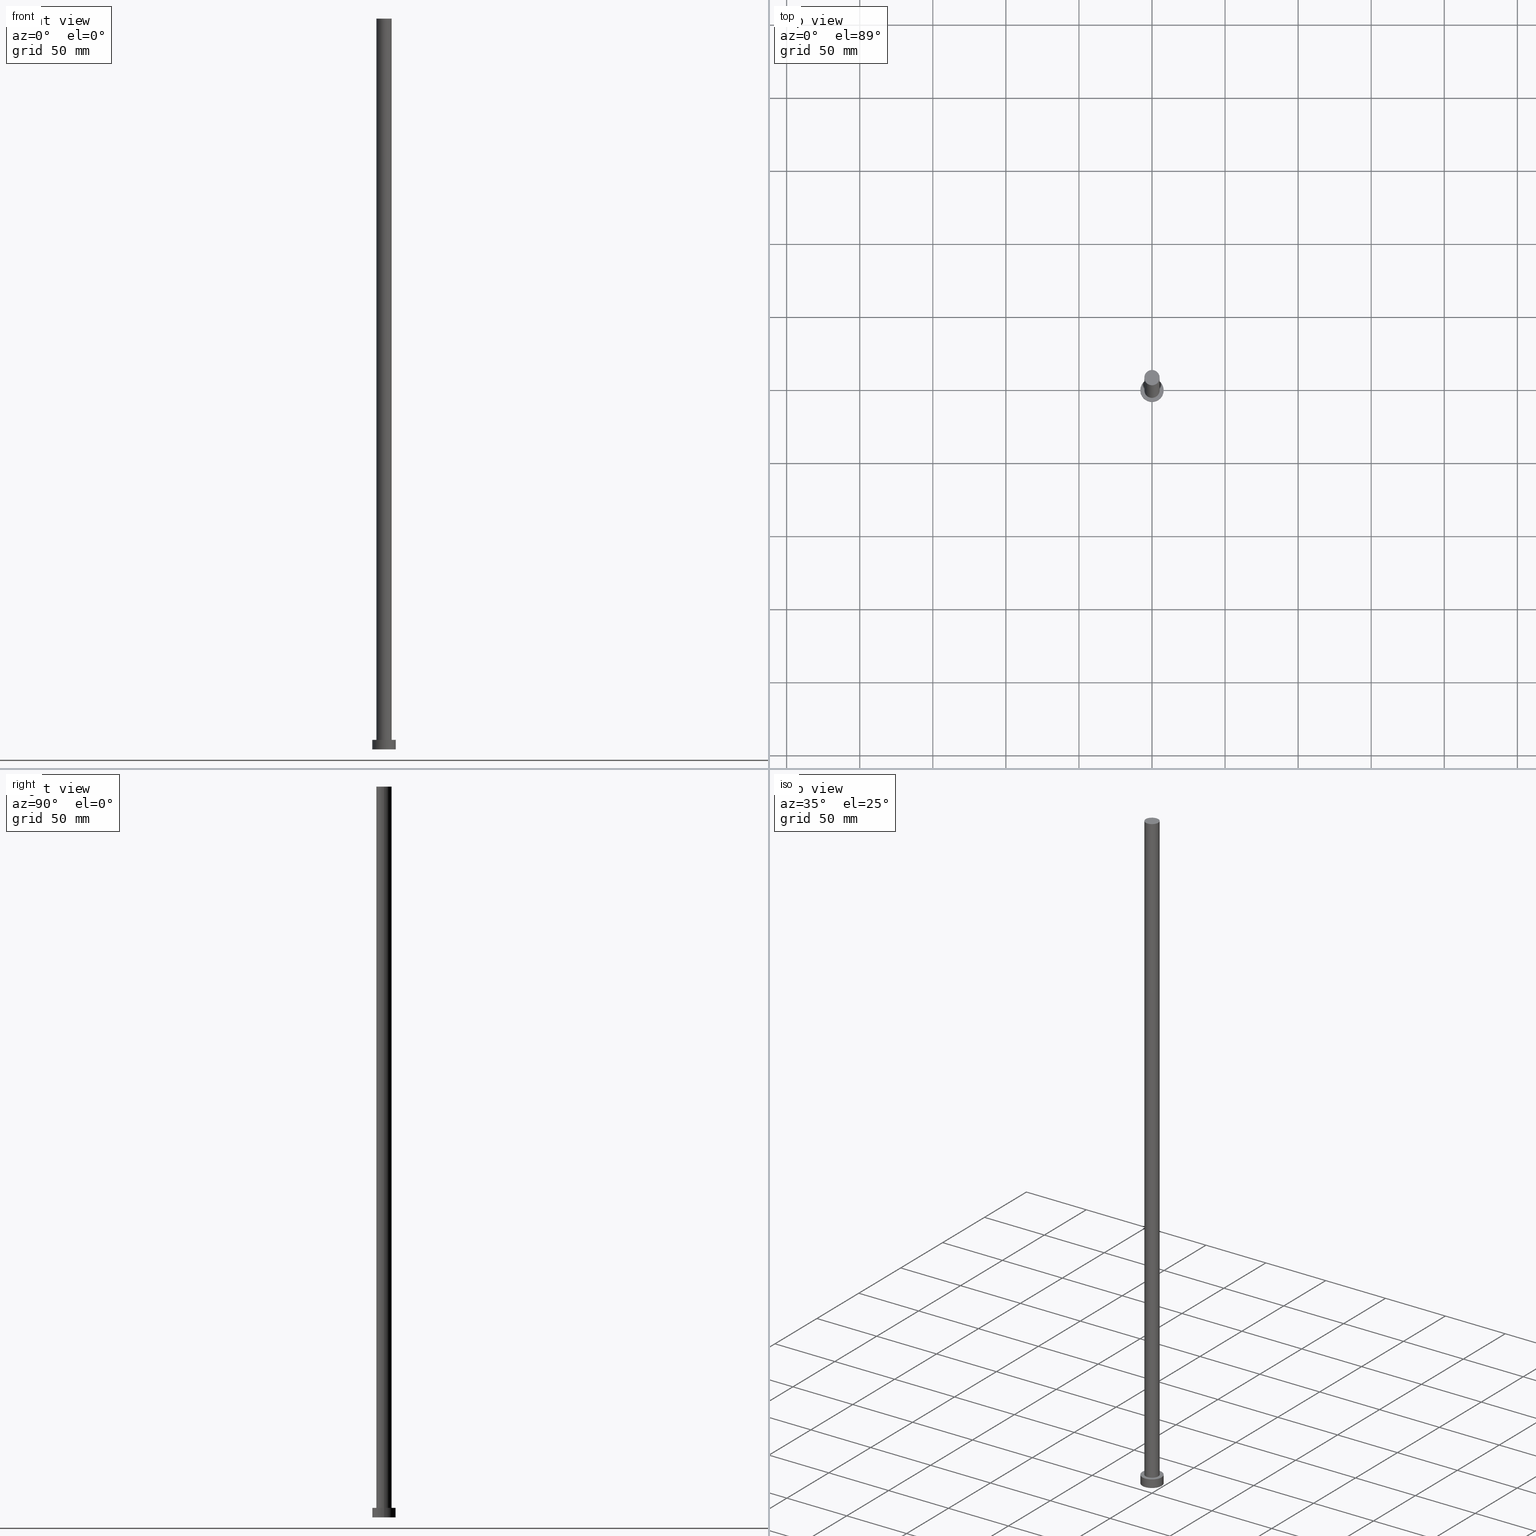
[diagram: canonical four-view strip — front | top / right | iso, engineering-drawing reading convention]
A machine part, canonical four-view strip (front | top / right | iso — engineering-drawing reading convention). The complete STEP part file that produces these views, byte-faithful:
ISO-10303-21;
HEADER;
FILE_DESCRIPTION (( 'STEP AP203' ),
    '1' );
FILE_NAME ('3daf.STEP',
    '2023-02-13T12:21:25',
    ( '' ),
    ( '' ),
    'SwSTEP 2.0',
    'SolidWorks 2019',
    '' );
FILE_SCHEMA (( 'CONFIG_CONTROL_DESIGN' ));
ENDSEC;

DATA;
#1 = APPROVAL ( #216, 'NEUR�EN�' ) ;
#2 = ORIENTED_EDGE ( 'NONE', *, *, #164, .T. ) ;
#3 = CIRCLE ( 'NONE', #77, 8.000000000000000000 ) ;
#4 = EDGE_LOOP ( 'NONE', ( #31, #2 ) ) ;
#5 =( NAMED_UNIT ( * ) SI_UNIT ( $, .STERADIAN. ) SOLID_ANGLE_UNIT ( ) );
#6 = CARTESIAN_POINT ( 'NONE',  ( -5.250000000000000888, 0.000000000000000000, 500.0000000000000000 ) ) ;
#7 = APPLICATION_PROTOCOL_DEFINITION ( 'international standard', 'config_control_design', 1994, #161 ) ;
#8 = PRODUCT_DEFINITION_SHAPE ( 'NONE', 'NONE',  #140 ) ;
#9 = APPROVAL_PERSON_ORGANIZATION ( #49, #1, #128 ) ;
#10 = VERTEX_POINT ( 'NONE', #83 ) ;
#11 = CARTESIAN_POINT ( 'NONE',  ( 8.000000000000000000, 9.797174393178823685E-16, 6.500000000000000000 ) ) ;
#12 = DATE_TIME_ROLE ( 'classification_date' ) ;
#13 = DIRECTION ( 'NONE',  ( -1.000000000000000000, 0.000000000000000000, 0.000000000000000000 ) ) ;
#14 = PERSON_AND_ORGANIZATION_ROLE ( 'classification_officer' ) ;
#15 = DIRECTION ( 'NONE',  ( -0.000000000000000000, -0.000000000000000000, -1.000000000000000000 ) ) ;
#16 = EDGE_CURVE ( 'NONE', #10, #95, #101, .T. ) ;
#17 = FACE_OUTER_BOUND ( 'NONE', #117, .T. ) ;
#18 = AXIS2_PLACEMENT_3D ( 'NONE', #132, #218, #158 ) ;
#19 = EDGE_LOOP ( 'NONE', ( #62, #80, #221, #103 ) ) ;
#20 = AXIS2_PLACEMENT_3D ( 'NONE', #111, #196, #201 ) ;
#21 = ORIENTED_EDGE ( 'NONE', *, *, #219, .F. ) ;
#22 = ORIENTED_EDGE ( 'NONE', *, *, #252, .T. ) ;
#23 = MECHANICAL_CONTEXT ( 'NONE', #208, 'mechanical' ) ;
#24 = AXIS2_PLACEMENT_3D ( 'NONE', #82, #220, #41 ) ;
#25 = APPROVAL_PERSON_ORGANIZATION ( #234, #42, #109 ) ;
#26 = CARTESIAN_POINT ( 'NONE',  ( 0.000000000000000000, 0.000000000000000000, 6.500000000000000000 ) ) ;
#27 = CALENDAR_DATE ( 2023, 13, 2 ) ;
#28 = PLANE ( 'NONE',  #123 ) ;
#29 = APPROVAL_DATE_TIME ( #212, #42 ) ;
#30 = CC_DESIGN_PERSON_AND_ORGANIZATION_ASSIGNMENT ( #249, #147, ( #140 ) ) ;
#31 = ORIENTED_EDGE ( 'NONE', *, *, #199, .T. ) ;
#32 = CARTESIAN_POINT ( 'NONE',  ( 8.000000000000000000, 9.797174393178823685E-16, 0.000000000000000000 ) ) ;
#33 = CARTESIAN_POINT ( 'NONE',  ( 5.250000000000000888, 6.429395695523605139E-16, 500.0000000000000000 ) ) ;
#34 = LOCAL_TIME ( 13, 21, 25.00000000000000000, #194 ) ;
#35 = CARTESIAN_POINT ( 'NONE',  ( 0.000000000000000000, 0.000000000000000000, 6.500000000000000000 ) ) ;
#36 = AXIS2_PLACEMENT_3D ( 'NONE', #51, #215, #197 ) ;
#37 = AXIS2_PLACEMENT_3D ( 'NONE', #26, #166, #145 ) ;
#38 = EDGE_LOOP ( 'NONE', ( #73, #224 ) ) ;
#39 = EDGE_LOOP ( 'NONE', ( #233, #214, #230, #148 ) ) ;
#40 = DIRECTION ( 'NONE',  ( 1.000000000000000000, 0.000000000000000000, 0.000000000000000000 ) ) ;
#41 = DIRECTION ( 'NONE',  ( -1.000000000000000000, 0.000000000000000000, 0.000000000000000000 ) ) ;
#42 = APPROVAL ( #232, 'NEUR�EN�' ) ;
#43 = CALENDAR_DATE ( 2023, 13, 2 ) ;
#44 = PERSON_AND_ORGANIZATION ( #76, #192 ) ;
#45 = AXIS2_PLACEMENT_3D ( 'NONE', #35, #74, #173 ) ;
#46 = DIRECTION ( 'NONE',  ( 0.000000000000000000, 0.000000000000000000, 1.000000000000000000 ) ) ;
#47 = COORDINATED_UNIVERSAL_TIME_OFFSET ( 1, 0, .AHEAD. ) ;
#48 = EDGE_CURVE ( 'NONE', #95, #99, #88, .T. ) ;
#49 = PERSON_AND_ORGANIZATION ( #76, #192 ) ;
#50 = DESIGN_CONTEXT ( 'detailed design', #161, 'design' ) ;
#51 = CARTESIAN_POINT ( 'NONE',  ( 0.000000000000000000, 0.000000000000000000, 500.0000000000000000 ) ) ;
#52 = CARTESIAN_POINT ( 'NONE',  ( 0.000000000000000000, 0.000000000000000000, 6.500000000000000000 ) ) ;
#53 = LINE ( 'NONE', #217, #184 ) ;
#54 = PERSON_AND_ORGANIZATION_ROLE ( 'design_supplier' ) ;
#55 = CC_DESIGN_PERSON_AND_ORGANIZATION_ASSIGNMENT ( #168, #71, ( #65 ) ) ;
#56 = AXIS2_PLACEMENT_3D ( 'NONE', #247, #112, #170 ) ;
#57 = VECTOR ( 'NONE', #202, 1000.000000000000000 ) ;
#58 = PRODUCT_RELATED_PRODUCT_CATEGORY ( 'detail', '', ( #228 ) ) ;
#59 = CARTESIAN_POINT ( 'NONE',  ( 5.250000000000000888, 6.429395695523605139E-16, 6.500000000000000000 ) ) ;
#60 = CC_DESIGN_SECURITY_CLASSIFICATION ( #222, ( #65 ) ) ;
#61 = ORIENTED_EDGE ( 'NONE', *, *, #241, .T. ) ;
#62 = ORIENTED_EDGE ( 'NONE', *, *, #105, .F. ) ;
#63 = UNCERTAINTY_MEASURE_WITH_UNIT (LENGTH_MEASURE( 1.000000000000000082E-05 ), #79, 'distance_accuracy_value', 'NONE');
#64 = AXIS2_PLACEMENT_3D ( 'NONE', #124, #211, #13 ) ;
#65 = PRODUCT_DEFINITION_FORMATION_WITH_SPECIFIED_SOURCE ( 'LIBOVOLN�', '', #228, .NOT_KNOWN. ) ;
#66 = PERSON_AND_ORGANIZATION ( #76, #192 ) ;
#67 = CARTESIAN_POINT ( 'NONE',  ( 0.000000000000000000, 0.000000000000000000, 6.500000000000000000 ) ) ;
#68 = CYLINDRICAL_SURFACE ( 'NONE', #64, 8.000000000000000000 ) ;
#69 = PERSON_AND_ORGANIZATION ( #76, #192 ) ;
#70 = DIRECTION ( 'NONE',  ( 1.000000000000000000, 0.000000000000000000, -0.000000000000000000 ) ) ;
#71 = PERSON_AND_ORGANIZATION_ROLE ( 'creator' ) ;
#72 = FACE_OUTER_BOUND ( 'NONE', #19, .T. ) ;
#73 = ORIENTED_EDGE ( 'NONE', *, *, #244, .F. ) ;
#74 = DIRECTION ( 'NONE',  ( 0.000000000000000000, 0.000000000000000000, 1.000000000000000000 ) ) ;
#75 = APPROVAL_PERSON_ORGANIZATION ( #66, #116, #207 ) ;
#76 = PERSON ( 'NEUR�EN�', 'NEUR�EN�', 'NEUR�EN�', ('NEUR�EN�'), ('NEUR�EN�'), ('NEUR�EN�') ) ;
#77 = AXIS2_PLACEMENT_3D ( 'NONE', #153, #255, #198 ) ;
#78 = ORIENTED_EDGE ( 'NONE', *, *, #164, .F. ) ;
#79 =( LENGTH_UNIT ( ) NAMED_UNIT ( * ) SI_UNIT ( .MILLI., .METRE. ) );
#80 = ORIENTED_EDGE ( 'NONE', *, *, #16, .T. ) ;
#81 = DIRECTION ( 'NONE',  ( 1.000000000000000000, 0.000000000000000000, 0.000000000000000000 ) ) ;
#82 = CARTESIAN_POINT ( 'NONE',  ( 0.000000000000000000, 0.000000000000000000, 500.0000000000000000 ) ) ;
#83 = CARTESIAN_POINT ( 'NONE',  ( 8.000000000000000000, 9.797174393178823685E-16, 6.500000000000000000 ) ) ;
#84 = CARTESIAN_POINT ( 'NONE',  ( 0.000000000000000000, 0.000000000000000000, 6.500000000000000000 ) ) ;
#85 = DIRECTION ( 'NONE',  ( -0.000000000000000000, -0.000000000000000000, -1.000000000000000000 ) ) ;
#86 = CALENDAR_DATE ( 2023, 13, 2 ) ;
#87 = APPROVAL_DATE_TIME ( #104, #1 ) ;
#88 = CIRCLE ( 'NONE', #113, 8.000000000000000000 ) ;
#89 = ADVANCED_FACE ( 'NONE', ( #72 ), #165, .T. ) ;
#90 = DIRECTION ( 'NONE',  ( -0.000000000000000000, -0.000000000000000000, -1.000000000000000000 ) ) ;
#91 = DIRECTION ( 'NONE',  ( 1.000000000000000000, 0.000000000000000000, 0.000000000000000000 ) ) ;
#92 = ADVANCED_FACE ( 'NONE', ( #130 ), #248, .T. ) ;
#93 = CIRCLE ( 'NONE', #142, 8.000000000000000000 ) ;
#94 = LINE ( 'NONE', #33, #167 ) ;
#95 = VERTEX_POINT ( 'NONE', #32 ) ;
#96 = CC_DESIGN_PERSON_AND_ORGANIZATION_ASSIGNMENT ( #189, #100, ( #228 ) ) ;
#97 = ORIENTED_EDGE ( 'NONE', *, *, #199, .F. ) ;
#98 = ORIENTED_EDGE ( 'NONE', *, *, #219, .T. ) ;
#99 = VERTEX_POINT ( 'NONE', #154 ) ;
#100 = PERSON_AND_ORGANIZATION_ROLE ( 'design_owner' ) ;
#101 = LINE ( 'NONE', #11, #157 ) ;
#102 = APPROVAL_DATE_TIME ( #118, #116 ) ;
#103 = ORIENTED_EDGE ( 'NONE', *, *, #186, .F. ) ;
#104 = DATE_AND_TIME ( #86, #34 ) ;
#105 = EDGE_CURVE ( 'NONE', #10, #177, #235, .T. ) ;
#106 = DIRECTION ( 'NONE',  ( -1.000000000000000000, 0.000000000000000000, 0.000000000000000000 ) ) ;
#107 = SECURITY_CLASSIFICATION_LEVEL ( 'unclassified' ) ;
#108 = CARTESIAN_POINT ( 'NONE',  ( 0.000000000000000000, 0.000000000000000000, 0.000000000000000000 ) ) ;
#109 = APPROVAL_ROLE ( '' ) ;
#110 = CC_DESIGN_APPROVAL ( #116, ( #140 ) ) ;
#111 = CARTESIAN_POINT ( 'NONE',  ( 0.000000000000000000, 0.000000000000000000, 500.0000000000000000 ) ) ;
#112 = DIRECTION ( 'NONE',  ( 0.000000000000000000, 0.000000000000000000, 1.000000000000000000 ) ) ;
#113 = AXIS2_PLACEMENT_3D ( 'NONE', #108, #193, #209 ) ;
#114 = AXIS2_PLACEMENT_3D ( 'NONE', #52, #129, #91 ) ;
#115 = VERTEX_POINT ( 'NONE', #146 ) ;
#116 = APPROVAL ( #143, 'NEUR�EN�' ) ;
#117 = EDGE_LOOP ( 'NONE', ( #183, #97, #22, #98 ) ) ;
#118 = DATE_AND_TIME ( #43, #226 ) ;
#119 = CC_DESIGN_APPROVAL ( #1, ( #222 ) ) ;
#120 = ORIENTED_EDGE ( 'NONE', *, *, #126, .T. ) ;
#121 = DATE_AND_TIME ( #191, #225 ) ;
#122 = CARTESIAN_POINT ( 'NONE',  ( -5.250000000000000888, 0.000000000000000000, 6.500000000000000000 ) ) ;
#123 = AXIS2_PLACEMENT_3D ( 'NONE', #169, #251, #70 ) ;
#124 = CARTESIAN_POINT ( 'NONE',  ( 0.000000000000000000, 0.000000000000000000, 6.500000000000000000 ) ) ;
#125 = SHAPE_DEFINITION_REPRESENTATION ( #8, #138 ) ;
#126 = EDGE_CURVE ( 'NONE', #204, #135, #223, .T. ) ;
#127 = DIRECTION ( 'NONE',  ( 1.000000000000000000, 0.000000000000000000, 0.000000000000000000 ) ) ;
#128 = APPROVAL_ROLE ( '' ) ;
#129 = DIRECTION ( 'NONE',  ( 0.000000000000000000, 0.000000000000000000, 1.000000000000000000 ) ) ;
#130 = FACE_OUTER_BOUND ( 'NONE', #4, .T. ) ;
#131 = COORDINATED_UNIVERSAL_TIME_OFFSET ( 1, 0, .AHEAD. ) ;
#132 = CARTESIAN_POINT ( 'NONE',  ( 0.000000000000000000, 0.000000000000000000, 500.0000000000000000 ) ) ;
#133 = ORIENTED_EDGE ( 'NONE', *, *, #213, .T. ) ;
#134 = CC_DESIGN_PERSON_AND_ORGANIZATION_ASSIGNMENT ( #69, #14, ( #222 ) ) ;
#135 = VERTEX_POINT ( 'NONE', #122 ) ;
#136 = EDGE_LOOP ( 'NONE', ( #133, #245 ) ) ;
#137 = CIRCLE ( 'NONE', #20, 5.250000000000000888 ) ;
#138 = ADVANCED_BREP_SHAPE_REPRESENTATION ( '3daf', ( #155, #187 ), #174 ) ;
#139 = ADVANCED_FACE ( 'NONE', ( #250 ), #68, .T. ) ;
#140 = PRODUCT_DEFINITION ( 'NEZN�M�', '', #65, #50 ) ;
#141 = DIRECTION ( 'NONE',  ( 0.000000000000000000, 0.000000000000000000, 1.000000000000000000 ) ) ;
#142 = AXIS2_PLACEMENT_3D ( 'NONE', #163, #182, #81 ) ;
#143 = APPROVAL_STATUS ( 'not_yet_approved' ) ;
#144 = ADVANCED_FACE ( 'NONE', ( #236 ), #28, .F. ) ;
#145 = DIRECTION ( 'NONE',  ( 1.000000000000000000, 0.000000000000000000, 0.000000000000000000 ) ) ;
#146 = CARTESIAN_POINT ( 'NONE',  ( -5.250000000000000888, 0.000000000000000000, 500.0000000000000000 ) ) ;
#147 = PERSON_AND_ORGANIZATION_ROLE ( 'creator' ) ;
#148 = ORIENTED_EDGE ( 'NONE', *, *, #244, .T. ) ;
#149 = DATE_TIME_ROLE ( 'creation_date' ) ;
#150 = CC_DESIGN_DATE_AND_TIME_ASSIGNMENT ( #231, #12, ( #222 ) ) ;
#151 = CIRCLE ( 'NONE', #36, 5.250000000000000888 ) ;
#152 = CARTESIAN_POINT ( 'NONE',  ( 5.250000000000000888, 6.429395695523605139E-16, 500.0000000000000000 ) ) ;
#153 = CARTESIAN_POINT ( 'NONE',  ( 0.000000000000000000, 0.000000000000000000, 6.500000000000000000 ) ) ;
#154 = CARTESIAN_POINT ( 'NONE',  ( -8.000000000000000000, 0.000000000000000000, 0.000000000000000000 ) ) ;
#155 = MANIFOLD_SOLID_BREP ( 'P�idat vysunut�m3', #200 ) ;
#156 = ORIENTED_EDGE ( 'NONE', *, *, #252, .F. ) ;
#157 = VECTOR ( 'NONE', #85, 1000.000000000000000 ) ;
#158 = DIRECTION ( 'NONE',  ( -1.000000000000000000, 0.000000000000000000, 0.000000000000000000 ) ) ;
#159 = CIRCLE ( 'NONE', #114, 5.250000000000000888 ) ;
#160 = EDGE_LOOP ( 'NONE', ( #21, #185 ) ) ;
#161 = APPLICATION_CONTEXT ( 'configuration controlled 3d designs of mechanical parts and assemblies' ) ;
#162 = VERTEX_POINT ( 'NONE', #152 ) ;
#163 = CARTESIAN_POINT ( 'NONE',  ( 0.000000000000000000, 0.000000000000000000, 0.000000000000000000 ) ) ;
#164 = EDGE_CURVE ( 'NONE', #162, #115, #151, .T. ) ;
#165 = CYLINDRICAL_SURFACE ( 'NONE', #178, 8.000000000000000000 ) ;
#166 = DIRECTION ( 'NONE',  ( 0.000000000000000000, 0.000000000000000000, 1.000000000000000000 ) ) ;
#167 = VECTOR ( 'NONE', #195, 1000.000000000000000 ) ;
#168 = PERSON_AND_ORGANIZATION ( #76, #192 ) ;
#169 = CARTESIAN_POINT ( 'NONE',  ( 0.000000000000000000, 0.000000000000000000, 0.000000000000000000 ) ) ;
#170 = DIRECTION ( 'NONE',  ( 1.000000000000000000, 0.000000000000000000, -0.000000000000000000 ) ) ;
#171 = CC_DESIGN_APPROVAL ( #42, ( #65 ) ) ;
#172 = FACE_OUTER_BOUND ( 'NONE', #206, .T. ) ;
#173 = DIRECTION ( 'NONE',  ( 1.000000000000000000, 0.000000000000000000, -0.000000000000000000 ) ) ;
#174 =( GEOMETRIC_REPRESENTATION_CONTEXT ( 3 ) GLOBAL_UNCERTAINTY_ASSIGNED_CONTEXT ( ( #63 ) ) GLOBAL_UNIT_ASSIGNED_CONTEXT ( ( #79, #246, #5 ) ) REPRESENTATION_CONTEXT ( 'NONE', 'WORKASPACE' ) );
#175 = CC_DESIGN_PERSON_AND_ORGANIZATION_ASSIGNMENT ( #44, #54, ( #65 ) ) ;
#176 = FACE_BOUND ( 'NONE', #160, .T. ) ;
#177 = VERTEX_POINT ( 'NONE', #238 ) ;
#178 = AXIS2_PLACEMENT_3D ( 'NONE', #84, #15, #106 ) ;
#179 = CARTESIAN_POINT ( 'NONE',  ( 0.000000000000000000, 0.000000000000000000, 0.000000000000000000 ) ) ;
#180 = LOCAL_TIME ( 13, 21, 25.00000000000000000, #131 ) ;
#181 = CC_DESIGN_DATE_AND_TIME_ASSIGNMENT ( #121, #149, ( #140 ) ) ;
#182 = DIRECTION ( 'NONE',  ( 0.000000000000000000, 0.000000000000000000, 1.000000000000000000 ) ) ;
#183 = ORIENTED_EDGE ( 'NONE', *, *, #241, .F. ) ;
#184 = VECTOR ( 'NONE', #90, 1000.000000000000000 ) ;
#185 = ORIENTED_EDGE ( 'NONE', *, *, #126, .F. ) ;
#186 = EDGE_CURVE ( 'NONE', #177, #99, #53, .T. ) ;
#187 = AXIS2_PLACEMENT_3D ( 'NONE', #179, #141, #40 ) ;
#188 = LOCAL_TIME ( 13, 21, 25.00000000000000000, #47 ) ;
#189 = PERSON_AND_ORGANIZATION ( #76, #192 ) ;
#190 = ADVANCED_FACE ( 'NONE', ( #172 ), #240, .T. ) ;
#191 = CALENDAR_DATE ( 2023, 13, 2 ) ;
#192 = ORGANIZATION ( 'NEUR�EN�', 'NEUR�EN�', '' ) ;
#193 = DIRECTION ( 'NONE',  ( 0.000000000000000000, 0.000000000000000000, 1.000000000000000000 ) ) ;
#194 = COORDINATED_UNIVERSAL_TIME_OFFSET ( 1, 0, .AHEAD. ) ;
#195 = DIRECTION ( 'NONE',  ( -0.000000000000000000, -0.000000000000000000, -1.000000000000000000 ) ) ;
#196 = DIRECTION ( 'NONE',  ( 0.000000000000000000, 0.000000000000000000, 1.000000000000000000 ) ) ;
#197 = DIRECTION ( 'NONE',  ( 1.000000000000000000, 0.000000000000000000, 0.000000000000000000 ) ) ;
#198 = DIRECTION ( 'NONE',  ( 1.000000000000000000, 0.000000000000000000, 0.000000000000000000 ) ) ;
#199 = EDGE_CURVE ( 'NONE', #115, #162, #137, .T. ) ;
#200 = CLOSED_SHELL ( 'NONE', ( #190, #89, #139, #203, #144, #227, #92 ) ) ;
#201 = DIRECTION ( 'NONE',  ( 1.000000000000000000, 0.000000000000000000, 0.000000000000000000 ) ) ;
#202 = DIRECTION ( 'NONE',  ( -0.000000000000000000, -0.000000000000000000, -1.000000000000000000 ) ) ;
#203 = ADVANCED_FACE ( 'NONE', ( #176, #237 ), #242, .T. ) ;
#204 = VERTEX_POINT ( 'NONE', #59 ) ;
#205 = LINE ( 'NONE', #6, #57 ) ;
#206 = EDGE_LOOP ( 'NONE', ( #78, #61, #120, #156 ) ) ;
#207 = APPROVAL_ROLE ( '' ) ;
#208 = APPLICATION_CONTEXT ( 'configuration controlled 3d designs of mechanical parts and assemblies' ) ;
#209 = DIRECTION ( 'NONE',  ( 1.000000000000000000, 0.000000000000000000, 0.000000000000000000 ) ) ;
#210 = CALENDAR_DATE ( 2023, 13, 2 ) ;
#211 = DIRECTION ( 'NONE',  ( -0.000000000000000000, -0.000000000000000000, -1.000000000000000000 ) ) ;
#212 = DATE_AND_TIME ( #210, #188 ) ;
#213 = EDGE_CURVE ( 'NONE', #177, #10, #3, .T. ) ;
#214 = ORIENTED_EDGE ( 'NONE', *, *, #213, .F. ) ;
#215 = DIRECTION ( 'NONE',  ( 0.000000000000000000, 0.000000000000000000, 1.000000000000000000 ) ) ;
#216 = APPROVAL_STATUS ( 'not_yet_approved' ) ;
#217 = CARTESIAN_POINT ( 'NONE',  ( -8.000000000000000000, 0.000000000000000000, 6.500000000000000000 ) ) ;
#218 = DIRECTION ( 'NONE',  ( -0.000000000000000000, -0.000000000000000000, -1.000000000000000000 ) ) ;
#219 = EDGE_CURVE ( 'NONE', #135, #204, #159, .T. ) ;
#220 = DIRECTION ( 'NONE',  ( -0.000000000000000000, -0.000000000000000000, -1.000000000000000000 ) ) ;
#221 = ORIENTED_EDGE ( 'NONE', *, *, #48, .T. ) ;
#222 = SECURITY_CLASSIFICATION ( '', '', #107 ) ;
#223 = CIRCLE ( 'NONE', #254, 5.250000000000000888 ) ;
#224 = ORIENTED_EDGE ( 'NONE', *, *, #48, .F. ) ;
#225 = LOCAL_TIME ( 13, 21, 25.00000000000000000, #253 ) ;
#226 = LOCAL_TIME ( 13, 21, 25.00000000000000000, #229 ) ;
#227 = ADVANCED_FACE ( 'NONE', ( #17 ), #239, .T. ) ;
#228 = PRODUCT ( '3daf', '3daf', '', ( #23 ) ) ;
#229 = COORDINATED_UNIVERSAL_TIME_OFFSET ( 1, 0, .AHEAD. ) ;
#230 = ORIENTED_EDGE ( 'NONE', *, *, #186, .T. ) ;
#231 = DATE_AND_TIME ( #27, #180 ) ;
#232 = APPROVAL_STATUS ( 'not_yet_approved' ) ;
#233 = ORIENTED_EDGE ( 'NONE', *, *, #16, .F. ) ;
#234 = PERSON_AND_ORGANIZATION ( #76, #192 ) ;
#235 = CIRCLE ( 'NONE', #37, 8.000000000000000000 ) ;
#236 = FACE_OUTER_BOUND ( 'NONE', #38, .T. ) ;
#237 = FACE_OUTER_BOUND ( 'NONE', #136, .T. ) ;
#238 = CARTESIAN_POINT ( 'NONE',  ( -8.000000000000000000, 0.000000000000000000, 6.500000000000000000 ) ) ;
#239 = CYLINDRICAL_SURFACE ( 'NONE', #18, 5.250000000000000888 ) ;
#240 = CYLINDRICAL_SURFACE ( 'NONE', #24, 5.250000000000000888 ) ;
#241 = EDGE_CURVE ( 'NONE', #162, #204, #94, .T. ) ;
#242 = PLANE ( 'NONE',  #45 ) ;
#243 = APPLICATION_PROTOCOL_DEFINITION ( 'international standard', 'config_control_design', 1994, #208 ) ;
#244 = EDGE_CURVE ( 'NONE', #99, #95, #93, .T. ) ;
#245 = ORIENTED_EDGE ( 'NONE', *, *, #105, .T. ) ;
#246 =( NAMED_UNIT ( * ) PLANE_ANGLE_UNIT ( ) SI_UNIT ( $, .RADIAN. ) );
#247 = CARTESIAN_POINT ( 'NONE',  ( 0.000000000000000000, 0.000000000000000000, 500.0000000000000000 ) ) ;
#248 = PLANE ( 'NONE',  #56 ) ;
#249 = PERSON_AND_ORGANIZATION ( #76, #192 ) ;
#250 = FACE_OUTER_BOUND ( 'NONE', #39, .T. ) ;
#251 = DIRECTION ( 'NONE',  ( 0.000000000000000000, 0.000000000000000000, 1.000000000000000000 ) ) ;
#252 = EDGE_CURVE ( 'NONE', #115, #135, #205, .T. ) ;
#253 = COORDINATED_UNIVERSAL_TIME_OFFSET ( 1, 0, .AHEAD. ) ;
#254 = AXIS2_PLACEMENT_3D ( 'NONE', #67, #46, #127 ) ;
#255 = DIRECTION ( 'NONE',  ( 0.000000000000000000, 0.000000000000000000, 1.000000000000000000 ) ) ;
ENDSEC;
END-ISO-10303-21;
